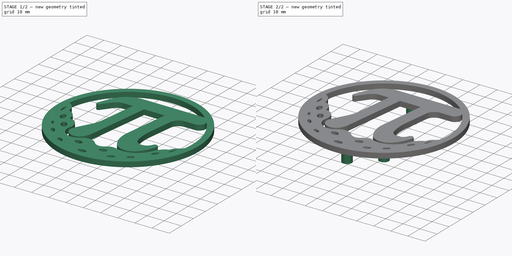
[diagram: build sequence overview — one tinted view per stage of 2, left to right]
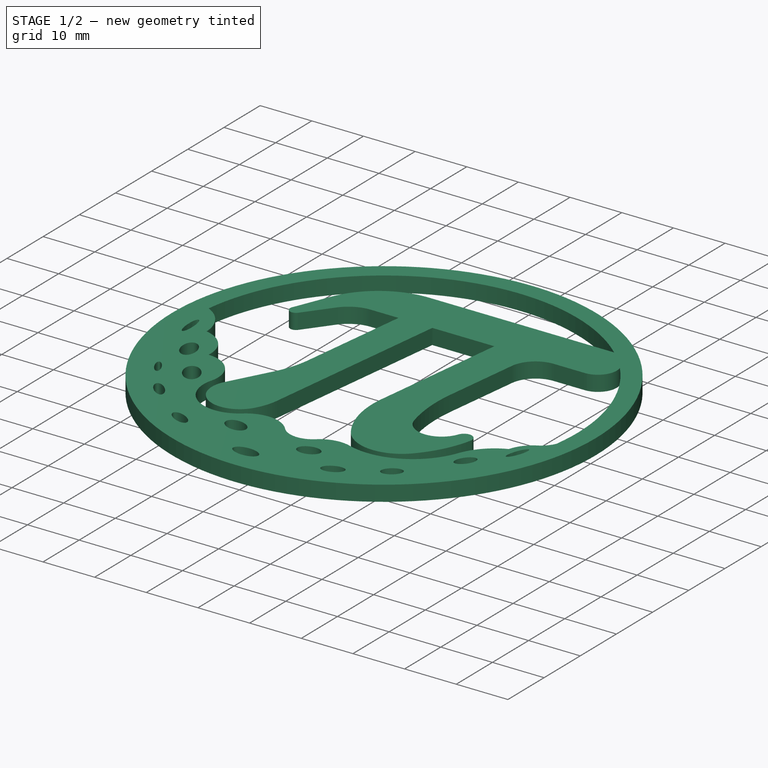
[diagram: stage 1 of 2 — iso view after this stage's code; geometry added in this stage tinted green]
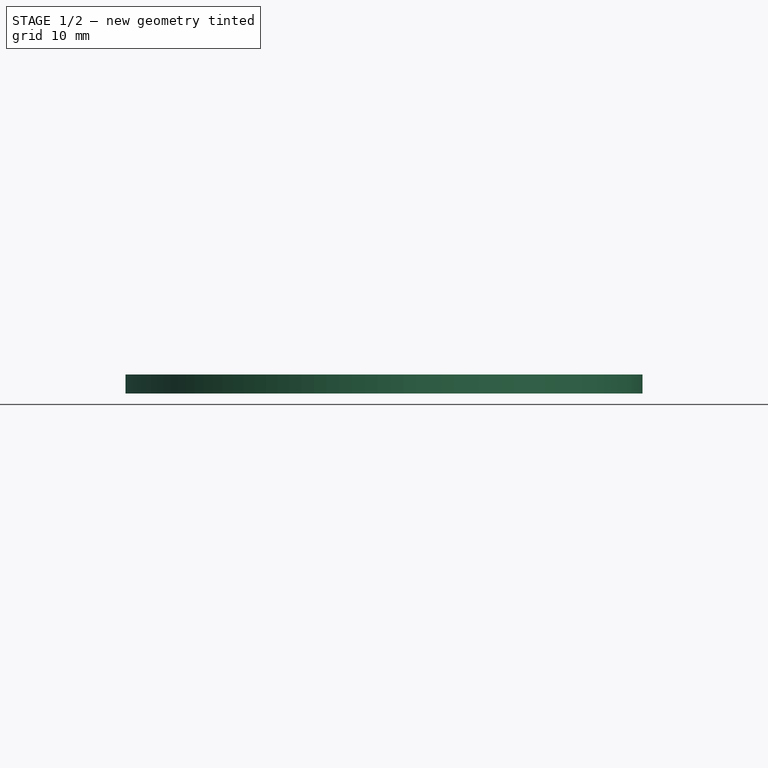
[diagram: stage 1 of 2 — front view after this stage's code; geometry added in this stage tinted green]
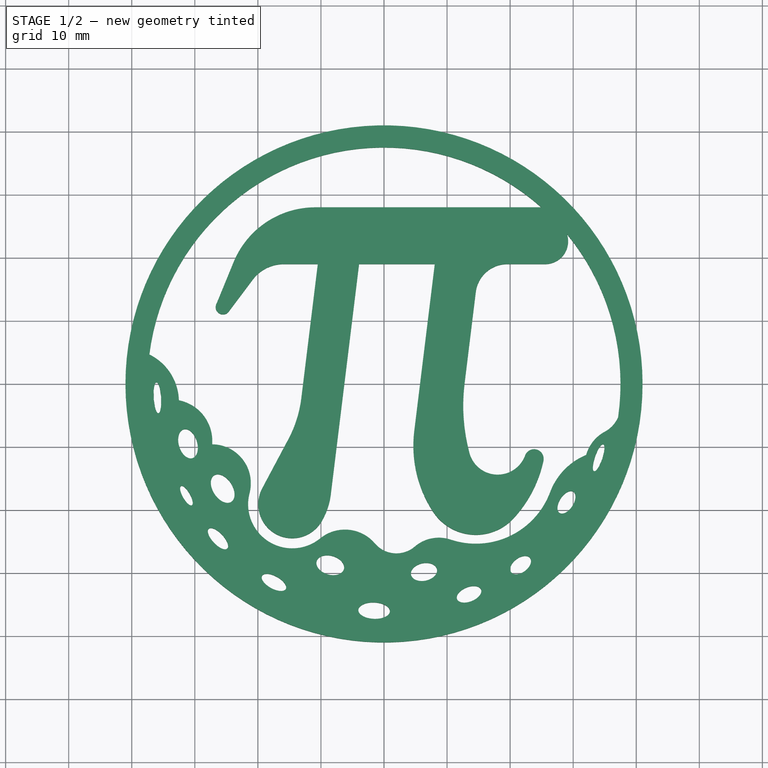
[diagram: stage 1 of 2 — top view after this stage's code; geometry added in this stage tinted green]
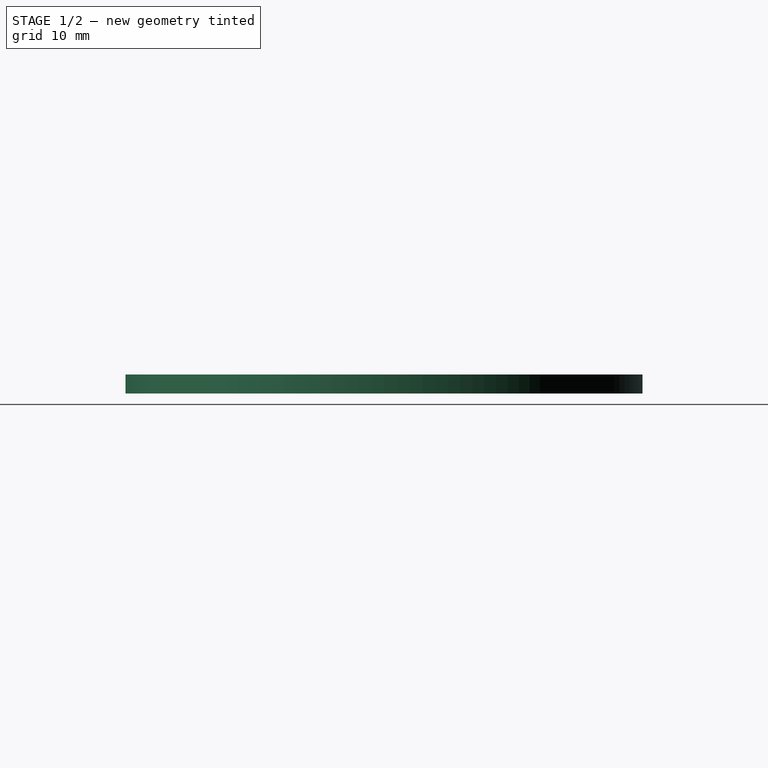
[diagram: stage 1 of 2 — right view after this stage's code; geometry added in this stage tinted green]
FCSTD DOCUMENT  (FreeCAD 1.0R39319 (Git))
Label: Stack_Module_Cover_LogoBall
License: All rights reserved
LicenseURL: https://en.wikipedia.org/wiki/All_rights_reserved
objects: Sketcher::SketchObject×2, PartDesign::Pad×2, PartDesign::ShapeBinder×1, PartDesign::Body×1, Part::Scale×1, PartDesign::CoordinateSystem×1, App::Part×1
note: 14 computed .brp shape members not serialized (recipe doc carries the construction recipe); baked Part::Feature solids carry a one-line shape summary decoded from their .brp

FEATURE [Sketcher::SketchObject] Sketch
  ArcFitTolerance = 1e-06
  AttachmentSupport = -> [XY_Plane001]
  FullyConstrained = false
  MakeInternals = false
  MapMode = 5
  sketch-geometry (161):
    g0: Circle CenterX=0 CenterY=0 CenterZ=0 NormalX=0 NormalY=0 NormalZ=1 AngleXU=0 Radius=41
    g1: Circle [constr] CenterX=0 CenterY=0 CenterZ=0 NormalX=0 NormalY=0 NormalZ=1 AngleXU=0 Radius=37.5
    g2: LineSegment StartX=24.9449 StartY=28 StartZ=0 EndX=-10.8953 EndY=28 EndZ=0
    g3: LineSegment StartX=-23.8473 StartY=19.3147 StartZ=0 EndX=-26.5337 EndY=12.7677 EndZ=0
    g4: ArcOfCircle CenterX=-10.8953 CenterY=14 CenterZ=0 NormalX=0 NormalY=0 NormalZ=1 AngleXU=0 Radius=14 StartAngle=1.5708 EndAngle=2.75221
    g5: GeomPoint [constr] X=-20.2834 Y=28 Z=0
    g6: ArcOfCircle CenterX=-25.5341 CenterY=12.1792 CenterZ=0 NormalX=0 NormalY=0 NormalZ=1 AngleXU=0 Radius=1.16 StartAngle=2.60947 EndAngle=5.75448
    g7: LineSegment StartX=-24.5325 StartY=11.594 StartZ=0 EndX=-20.8221 EndY=16.5323 EndZ=0
    g8: LineSegment StartX=-15.8813 StartY=19 StartZ=0 EndX=-10.5 EndY=19 EndZ=0
    g9: ArcOfCircle CenterX=-15.8813 CenterY=12.82 CenterZ=0 NormalX=0 NormalY=0 NormalZ=1 AngleXU=0 Radius=6.18 StartAngle=1.5708 EndAngle=2.49722
    g10: GeomPoint [constr] X=-18.9679 Y=19 Z=0
    g11: LineSegment StartX=-10.5 StartY=19 StartZ=0 EndX=-13.1153 EndY=-2.30004 EndZ=0
    g12: LineSegment StartX=-19.3069 StartY=-16.5524 StartZ=0 EndX=-15.1543 EndY=-8.75786 EndZ=0
    g13: ArcOfCircle CenterX=-31.5171 CenterY=-0.0405907 CenterZ=0 NormalX=0 NormalY=0 NormalZ=1 AngleXU=0 Radius=18.54 StartAngle=5.79368 EndAngle=6.16101
    g14: GeomPoint [constr] X=-13.535 Y=-5.71833 Z=0
    g15: ArcOfCircle CenterX=-14.5498 CenterY=-19.0867 CenterZ=0 NormalX=0 NormalY=0 NormalZ=1 AngleXU=0 Radius=5.39 StartAngle=2.65209 EndAngle=5.73645
    g16: ArcOfCircle CenterX=-19.2458 CenterY=-16.2287 CenterZ=0 NormalX=0 NormalY=0 NormalZ=1 AngleXU=0 Radius=10.8873 StartAngle=5.73645 EndAngle=6.16101
    g17: LineSegment StartX=-8.43962 StartY=-17.5555 StartZ=0 EndX=-3.95119 EndY=19 EndZ=0
    g18: LineSegment StartX=-3.95119 StartY=19 StartZ=0 EndX=8.04881 EndY=19 EndZ=0
    g19: Ellipse CenterX=34.0387 CenterY=-11.7205 CenterZ=0 NormalX=0 NormalY=0 NormalZ=1 MajorRadius=2.25 MinorRadius=0.6 AngleXU=1.23918
    g20: LineSegment [constr] StartX=34.7712 StartY=-9.59304 StartZ=0 EndX=33.3061 EndY=-13.8479 EndZ=0
    g21: LineSegment [constr] StartX=33.4714 StartY=-11.5251 StartZ=0 EndX=34.606 EndY=-11.9158 EndZ=0
    g22: GeomPoint [constr] X=34.7447 Y=-9.67008 Z=0
    g23: GeomPoint [constr] X=33.3327 Y=-13.7708 Z=0
    g24: Ellipse CenterX=6.34131 CenterY=-29.8335 CenterZ=0 NormalX=0 NormalY=0 NormalZ=1 MajorRadius=2.1 MinorRadius=1.4 AngleXU=0.20944
    g25: LineSegment [constr] StartX=8.39542 StartY=-29.3969 StartZ=0 EndX=4.2872 EndY=-30.2701 EndZ=0
    g26: LineSegment [constr] StartX=6.05023 StartY=-28.4641 StartZ=0 EndX=6.63239 EndY=-31.2029 EndZ=0
    g27: GeomPoint [constr] X=7.87235 Y=-29.5081 Z=0
    g28: GeomPoint [constr] X=4.81027 Y=-30.1589 Z=0
    g29: Ellipse CenterX=13.4858 CenterY=-33.3786 CenterZ=0 NormalX=0 NormalY=0 NormalZ=1 MajorRadius=2.05 MinorRadius=1.15 AngleXU=0.383973
    g30: LineSegment [constr] StartX=15.3866 StartY=-32.6107 StartZ=0 EndX=11.5851 EndY=-34.1466 EndZ=0
    g31: LineSegment [constr] StartX=13.055 StartY=-32.3124 StartZ=0 EndX=13.9166 EndY=-34.4449 EndZ=0
    g32: GeomPoint [constr] X=15.0593 Y=-32.7429 Z=0
    g33: GeomPoint [constr] X=11.9124 Y=-34.0143 Z=0
    g34: Ellipse CenterX=21.6653 CenterY=-28.7509 CenterZ=0 NormalX=0 NormalY=0 NormalZ=1 MajorRadius=1.875 MinorRadius=1.15 AngleXU=0.645772
    g35: LineSegment [constr] StartX=23.1628 StartY=-27.6225 StartZ=0 EndX=20.1679 EndY=-29.8793 EndZ=0
    g36: LineSegment [constr] StartX=20.9732 StartY=-27.8325 StartZ=0 EndX=22.3574 EndY=-29.6693 EndZ=0
    g37: GeomPoint [constr] X=22.8481 Y=-27.8596 Z=0
    g38: GeomPoint [constr] X=20.4826 Y=-29.6421 Z=0
    g39: Ellipse CenterX=28.9341 CenterY=-18.79 CenterZ=0 NormalX=0 NormalY=0 NormalZ=1 MajorRadius=2 MinorRadius=1.1 AngleXU=0.994838
    g40: LineSegment [constr] StartX=30.0234 StartY=-17.1127 StartZ=0 EndX=27.8449 EndY=-20.4674 EndZ=0
    g41: LineSegment [constr] StartX=28.0116 StartY=-18.1909 StartZ=0 EndX=29.8567 EndY=-19.3891 EndZ=0
    g42: GeomPoint [constr] X=29.8439 Y=-17.3892 Z=0
    g43: GeomPoint [constr] X=28.0244 Y=-20.1909 Z=0
    g44: Ellipse CenterX=-1.5703 CenterY=-35.9657 CenterZ=0 NormalX=0 NormalY=0 NormalZ=1 MajorRadius=2.50238 MinorRadius=1.30124 AngleXU=-0.0436333
    g45: LineSegment [constr] StartX=0.929699 StartY=-36.0749 StartZ=0 EndX=-4.0703 EndY=-35.8566 EndZ=0
    g46: LineSegment [constr] StartX=-1.51354 StartY=-34.6657 StartZ=0 EndX=-1.62706 EndY=-37.2657 EndZ=0
    g47: GeomPoint [constr] X=0.565114 Y=-36.059 Z=0
    g48: GeomPoint [constr] X=-3.70572 Y=-35.8725 Z=0
    g49: Ellipse CenterX=-8.52046 CenterY=-28.7646 CenterZ=0 NormalX=0 NormalY=0 NormalZ=1 MajorRadius=2.25 MinorRadius=1.5 AngleXU=-0.287979
    g50: LineSegment [constr] StartX=-6.36312 StartY=-29.4036 StartZ=0 EndX=-10.6778 EndY=-28.1256 EndZ=0
    g51: LineSegment [constr] StartX=-8.09444 StartY=-27.3264 StartZ=0 EndX=-8.94648 EndY=-30.2028 EndZ=0
    g52: GeomPoint [constr] X=-6.91247 Y=-29.2409 Z=0
    g53: GeomPoint [constr] X=-10.1284 Y=-28.2883 Z=0
    g54: Ellipse CenterX=-17.4531 CenterY=-31.4863 CenterZ=0 NormalX=0 NormalY=0 NormalZ=1 MajorRadius=2.15 MinorRadius=1 AngleXU=-0.506145
    g55: LineSegment [constr] StartX=-15.5727 StartY=-32.5287 StartZ=0 EndX=-19.3336 EndY=-30.444 EndZ=0
    g56: LineSegment [constr] StartX=-16.9683 StartY=-30.6117 StartZ=0 EndX=-17.938 EndY=-32.3609 EndZ=0
    g57: GeomPoint [constr] X=-15.7885 Y=-32.409 Z=0
    g58: GeomPoint [constr] X=-19.1178 Y=-30.5636 Z=0
    g59: Ellipse CenterX=-26.3287 CenterY=-24.552 CenterZ=0 NormalX=0 NormalY=0 NormalZ=1 MajorRadius=2.15 MinorRadius=0.9 AngleXU=-0.820304
    g60: LineSegment [constr] StartX=-24.8624 StartY=-26.1244 StartZ=0 EndX=-27.795 EndY=-22.9795 EndZ=0
    g61: LineSegment [constr] StartX=-25.6705 StartY=-23.9382 StartZ=0 EndX=-26.9869 EndY=-25.1658 EndZ=0
    g62: GeomPoint [constr] X=-24.9971 Y=-25.98 Z=0
    g63: GeomPoint [constr] X=-27.6604 Y=-23.1239 Z=0
    g64: Ellipse CenterX=-35.9329 CenterY=-2.19776 CenterZ=0 NormalX=0 NormalY=0 NormalZ=1 MajorRadius=2.45458 MinorRadius=0.601121 AngleXU=-1.50971
    g65: LineSegment [constr] StartX=-35.783 StartY=-4.64776 StartZ=0 EndX=-36.0827 EndY=0.252235 EndZ=0
    g66: LineSegment [constr] StartX=-35.3329 StartY=-2.16107 StartZ=0 EndX=-36.5329 EndY=-2.23446 EndZ=0
    g67: GeomPoint [constr] X=-35.7876 Y=-4.57316 Z=0
    g68: GeomPoint [constr] X=-36.0781 Y=0.17763 Z=0
    g69: Ellipse CenterX=-25.5794 CenterY=-16.6115 CenterZ=0 NormalX=0 NormalY=0 NormalZ=1 MajorRadius=2.5 MinorRadius=1.55 AngleXU=-0.994837
    g70: LineSegment [constr] StartX=-24.2178 StartY=-18.7082 StartZ=0 EndX=-26.941 EndY=-14.5148 EndZ=0
    g71: LineSegment [constr] StartX=-24.2795 StartY=-15.7673 StartZ=0 EndX=-26.8794 EndY=-17.4557 EndZ=0
    g72: GeomPoint [constr] X=-24.5111 Y=-18.2566 Z=0
    g73: GeomPoint [constr] X=-26.6478 Y=-14.9664 Z=0
    g74: Ellipse CenterX=-31.3328 CenterY=-17.7272 CenterZ=0 NormalX=0 NormalY=0 NormalZ=1 MajorRadius=1.75 MinorRadius=0.6 AngleXU=-1.05592
    g75: LineSegment [constr] StartX=-30.4711 StartY=-19.2504 StartZ=0 EndX=-32.1945 EndY=-16.2041 EndZ=0
    g76: LineSegment [constr] StartX=-30.8106 StartY=-17.4318 StartZ=0 EndX=-31.855 EndY=-18.0227 EndZ=0
    g77: GeomPoint [constr] X=-30.5233 Y=-19.158 Z=0
    g78: GeomPoint [constr] X=-32.1423 Y=-16.2964 Z=0
    g79: Ellipse CenterX=-31.0799 CenterY=-9.50208 CenterZ=0 NormalX=0 NormalY=0 NormalZ=1 MajorRadius=2.385 MinorRadius=1.46 AngleXU=-1.27409
    g80: LineSegment [constr] StartX=-30.3826 StartY=-11.7829 StartZ=0 EndX=-31.7772 EndY=-7.22129 EndZ=0
    g81: LineSegment [constr] StartX=-29.6837 StartY=-9.07522 StartZ=0 EndX=-32.4761 EndY=-9.92894 EndZ=0
    g82: GeomPoint [constr] X=-30.5285 Y=-11.3056 Z=0
    g83: GeomPoint [constr] X=-31.6313 Y=-7.69858 Z=0
    g84: ArcOfCircle CenterX=-3.28958 CenterY=-16.1688 CenterZ=0 NormalX=0 NormalY=0 NormalZ=1 AngleXU=0 Radius=2.6 StartAngle=0.226445 EndAngle=2.51372
    g85: ArcOfCircle CenterX=-3.68832 CenterY=-18.1286 CenterZ=0 NormalX=0 NormalY=0 NormalZ=1 AngleXU=0 Radius=3.6 StartAngle=0.733279 EndAngle=2.00689
    g86: LineSegment [constr] StartX=-3.68832 StartY=-18.1286 StartZ=0 EndX=-3.28958 EndY=-16.1688 EndZ=0
    g87: ArcOfCircle CenterX=-29.978 CenterY=1.15 CenterZ=0 NormalX=0 NormalY=0 NormalZ=1 AngleXU=0 Radius=2.6 StartAngle=5.54097 EndAngle=7.82825
    g88: ArcOfCircle CenterX=-31.819 CenterY=0.368537 CenterZ=0 NormalX=0 NormalY=0 NormalZ=1 AngleXU=0 Radius=3.6 StartAngle=6.04781 EndAngle=7.32142
    g89: ArcOfCircle CenterX=35 CenterY=-0.610917 CenterZ=0 NormalX=0 NormalY=0 NormalZ=1 AngleXU=0 Radius=2.6 StartAngle=1.9805 EndAngle=4.26778
    g90: ArcOfCircle CenterX=36.9997 CenterY=-0.645821 CenterZ=0 NormalX=0 NormalY=0 NormalZ=1 AngleXU=0 Radius=3.6 StartAngle=2.48734 EndAngle=3.76094
    g91: LineSegment [constr] StartX=36.9997 StartY=-0.645821 StartZ=0 EndX=35 EndY=-0.610917 EndZ=0
    g92: ArcOfCircle CenterX=-23.1216 CenterY=-4.2 CenterZ=0 NormalX=0 NormalY=0 NormalZ=1 AngleXU=0 Radius=2.6 StartAngle=5.92494 EndAngle=8.21222
    g93: ArcOfCircle CenterX=-24.5358 CenterY=-5.61421 CenterZ=0 NormalX=0 NormalY=0 NormalZ=1 AngleXU=0 Radius=3.6 StartAngle=0.148594 EndAngle=1.4222
    g94: ArcOfCircle CenterX=-34.0259 CenterY=8.2 CenterZ=0 NormalX=0 NormalY=0 NormalZ=1 AngleXU=0 Radius=2.6 StartAngle=5.13955 EndAngle=7.42682
    g95: ArcOfCircle CenterX=-36.0259 CenterY=8.2 CenterZ=0 NormalX=0 NormalY=0 NormalZ=1 AngleXU=0 Radius=3.6 StartAngle=5.64638 EndAngle=6.91999
    g96: ArcOfCircle CenterX=30.0791 CenterY=-7.5 CenterZ=0 NormalX=0 NormalY=0 NormalZ=1 AngleXU=0 Radius=2.6 StartAngle=1.41327 EndAngle=3.70055
    g97: ArcOfCircle CenterX=31.7468 CenterY=-8.60387 CenterZ=0 NormalX=0 NormalY=0 NormalZ=1 AngleXU=0 Radius=3.6 StartAngle=1.9201 EndAngle=3.19371
    g98: ArcOfCircle CenterX=2.1086 CenterY=-21.8987 CenterZ=0 NormalX=0 NormalY=0 NormalZ=1 AngleXU=0 Radius=2.6 StartAngle=0.523151 EndAngle=2.81043
    g99: ArcOfCircle CenterX=2.30029 CenterY=-23.8895 CenterZ=0 NormalX=0 NormalY=0 NormalZ=1 AngleXU=0 Radius=3.6 StartAngle=1.02998 EndAngle=2.30359
    g100: LineSegment [constr] StartX=2.30029 StartY=-23.8895 StartZ=0 EndX=2.1086 EndY=-21.8987 EndZ=0
    g101: LineSegment StartX=8.04881 StartY=19 StartZ=0 EndX=4.79613 EndY=-7.49106 EndZ=0
    g102: ArcOfCircle CenterX=23.724 CenterY=-9.8151 CenterZ=0 NormalX=0 NormalY=0 NormalZ=1 AngleXU=0 Radius=19.07 StartAngle=3.01942 EndAngle=3.72139
    g103: ArcOfCircle CenterX=14.5718 CenterY=-15.8086 CenterZ=0 NormalX=0 NormalY=0 NormalZ=1 AngleXU=0 Radius=8.13 StartAngle=3.72139 EndAngle=5.53863
    g104: ArcOfCircle CenterX=6.15897 CenterY=-8.05635 CenterZ=0 NormalX=0 NormalY=0 NormalZ=1 AngleXU=0 Radius=19.57 StartAngle=5.53863 EndAngle=6.06966
    g105: ArcOfCircle CenterX=23.799 CenterY=-11.8813 CenterZ=0 NormalX=0 NormalY=0 NormalZ=1 AngleXU=0 Radius=1.52 StartAngle=6.06966 EndAngle=9.07368
    g106: ArcOfCircle CenterX=18.0242 CenterY=-9.76613 CenterZ=0 NormalX=0 NormalY=0 NormalZ=1 AngleXU=0 Radius=4.63 StartAngle=3.4029 EndAngle=5.93208
    g107: ArcOfCircle CenterX=41.6732 CenterY=-3.44186 CenterZ=0 NormalX=0 NormalY=0 NormalZ=1 AngleXU=0 Radius=29.11 StartAngle=3.02879 EndAngle=3.4029
    g108: LineSegment StartX=12.7482 StartY=-0.165091 StartZ=0 EndX=14.558 EndY=14.5742 EndZ=0
    g109: LineSegment StartX=19.5604 StartY=19 StartZ=0 EndX=25.5604 EndY=19 EndZ=0
    g110: ArcOfCircle CenterX=19.5604 CenterY=13.96 CenterZ=0 NormalX=0 NormalY=0 NormalZ=1 AngleXU=0 Radius=5.04 StartAngle=1.5708 EndAngle=3.01942
    g111: GeomPoint [constr] X=15.1014 Y=19 Z=0
    g112: ArcOfCircle CenterX=25.5604 CenterY=22.64 CenterZ=0 NormalX=0 NormalY=0 NormalZ=1 AngleXU=0 Radius=3.64 StartAngle=4.71239 EndAngle=6.58928
    g113: LineSegment [constr] StartX=0 StartY=-71.5751 StartZ=0 EndX=0 EndY=-50.0337 EndZ=0
    g114: ArcOfCircle CenterX=-40.9001 CenterY=-2.86001 CenterZ=0 NormalX=0 NormalY=0 NormalZ=1 AngleXU=0 Radius=8.38 StartAngle=0.030432 EndAngle=1.11467
    g115: ArcOfCircle CenterX=-33.8074 CenterY=-9.05865 CenterZ=0 NormalX=0 NormalY=0 NormalZ=1 AngleXU=0 Radius=6.58 StartAngle=6.20233 EndAngle=7.65768
    g116: ArcOfCircle CenterX=-27.2798 CenterY=-15.75 CenterZ=0 NormalX=0 NormalY=0 NormalZ=1 AngleXU=0 Radius=6.16 StartAngle=6.02684 EndAngle=7.84897
    g117: ArcOfCircle CenterX=-14.5498 CenterY=-19.0867 CenterZ=0 NormalX=0 NormalY=0 NormalZ=1 AngleXU=0 Radius=7 StartAngle=2.88525 EndAngle=5.39568
    g118: ArcOfCircle CenterX=-6.19075 CenterY=-29.3543 CenterZ=0 NormalX=0 NormalY=0 NormalZ=1 AngleXU=0 Radius=6.24 StartAngle=0.704991 EndAngle=2.25409
    g119: ArcOfCircle CenterX=1.96617 CenterY=-22.4139 CenterZ=0 NormalX=0 NormalY=0 NormalZ=1 AngleXU=0 Radius=4.47 StartAngle=3.84658 EndAngle=5.42057
    g120: ArcOfCircle CenterX=8.6984 CenterY=-30.2752 CenterZ=0 NormalX=0 NormalY=0 NormalZ=1 AngleXU=0 Radius=5.88 StartAngle=1.24712 EndAngle=2.27898
    g121: ArcOfCircle CenterX=14.5665 CenterY=-12.7833 CenterZ=0 NormalX=0 NormalY=0 NormalZ=1 AngleXU=0 Radius=12.57 StartAngle=4.38871 EndAngle=5.9264
    g122: ArcOfCircle CenterX=35.94 CenterY=-20.75 CenterZ=0 NormalX=0 NormalY=0 NormalZ=1 AngleXU=0 Radius=10.24 StartAngle=1.95984 EndAngle=2.78481
    g123: ArcOfCircle CenterX=37.8638 CenterY=-12.897 CenterZ=0 NormalX=0 NormalY=0 NormalZ=1 AngleXU=0 Radius=6.03 StartAngle=2.06124 EndAngle=2.86929
    g124: ArcOfCircle CenterX=32.8192 CenterY=-3.44945 CenterZ=0 NormalX=0 NormalY=0 NormalZ=1 AngleXU=0 Radius=4.68 StartAngle=5.20283 EndAngle=5.88136
    g125: ArcOfCircle CenterX=0 CenterY=1.33e-14 CenterZ=0 NormalX=0 NormalY=0 NormalZ=1 AngleXU=0 Radius=37.5 StartAngle=6.14192 EndAngle=6.96859
    g126: ArcOfCircle CenterX=-2.84e-14 CenterY=7.46e-14 CenterZ=0 NormalX=0 NormalY=0 NormalZ=1 AngleXU=0 Radius=37.5 StartAngle=0.843037 EndAngle=3.01692
    g127: LineSegment [constr] StartX=-40.9001 StartY=-2.86001 StartZ=0 EndX=0 EndY=1.33e-14 EndZ=0
    g128: LineSegment [constr] StartX=-27.2798 StartY=-15.75 StartZ=0 EndX=0 EndY=-1.8e-15 EndZ=0
    g129: LineSegment [constr] StartX=-14.5498 StartY=-19.0867 StartZ=0 EndX=0 EndY=0 EndZ=0
    g130: LineSegment [constr] StartX=-6.19075 StartY=-29.3543 StartZ=0 EndX=0 EndY=0 EndZ=0
    g131: LineSegment [constr] StartX=8.6984 StartY=-30.2752 StartZ=0 EndX=0 EndY=0 EndZ=0
    g132: LineSegment [constr] StartX=1.96617 StartY=-22.4139 StartZ=0 EndX=-2e-16 EndY=0 EndZ=0
    g133: LineSegment [constr] StartX=14.5718 StartY=-15.8086 StartZ=0 EndX=1.8e-15 EndY=0 EndZ=0
    g134: LineSegment [constr] StartX=35.94 StartY=-20.75 StartZ=0 EndX=0 EndY=0 EndZ=0
    g135: LineSegment [constr] StartX=37.8638 StartY=-12.897 StartZ=0 EndX=0 EndY=0 EndZ=0
    g136: LineSegment [constr] StartX=32.8192 StartY=-3.44945 StartZ=0 EndX=0 EndY=0 EndZ=0
    g137: LineSegment [constr] StartX=-33.8074 StartY=-9.05865 StartZ=0 EndX=0 EndY=0 EndZ=0
    g138: LineSegment [constr] StartX=23.799 StartY=-11.8813 StartZ=0 EndX=-2.84e-14 EndY=7.46e-14 EndZ=0
    g139: LineSegment [constr] StartX=18.0242 StartY=-9.76613 StartZ=0 EndX=0 EndY=0 EndZ=0
    g140: LineSegment [constr] StartX=-15.8813 StartY=12.82 StartZ=0 EndX=0 EndY=0 EndZ=0
    g141: LineSegment [constr] StartX=-25.5341 StartY=12.1792 StartZ=0 EndX=0 EndY=0 EndZ=0
    g142: LineSegment [constr] StartX=-10.8953 StartY=14 StartZ=0 EndX=0 EndY=0 EndZ=0
    g143: ArcOfCircle CenterX=30.4634 CenterY=-5.08034 CenterZ=0 NormalX=0 NormalY=0 NormalZ=1 AngleXU=0 Radius=0.15 StartAngle=5.0617 EndAngle=7.69645
    g144: ArcOfCircle CenterX=28.0019 CenterY=-8.79923 CenterZ=0 NormalX=0 NormalY=0 NormalZ=1 AngleXU=0 Radius=0.15 StartAngle=3.70055 EndAngle=6.3353
    g145: ArcOfCircle CenterX=33.9462 CenterY=-2.82272 CenterZ=0 NormalX=0 NormalY=0 NormalZ=1 AngleXU=0 Radius=0.15 StartAngle=4.26778 EndAngle=6.90254
    g146: ArcOfCircle CenterX=34.0241 CenterY=1.63632 CenterZ=0 NormalX=0 NormalY=0 NormalZ=1 AngleXU=0 Radius=0.15 StartAngle=5.62893 EndAngle=8.26369
    g147: ArcOfCircle CenterX=-0.20828 CenterY=-21.1021 CenterZ=0 NormalX=0 NormalY=0 NormalZ=1 AngleXU=0 Radius=0.15 StartAngle=2.81043 EndAngle=5.44519
    g148: ArcOfCircle CenterX=4.23091 CenterY=-20.6747 CenterZ=0 NormalX=0 NormalY=0 NormalZ=1 AngleXU=0 Radius=0.15 StartAngle=4.17158 EndAngle=6.80634
    g149: ArcOfCircle CenterX=-5.27231 CenterY=-14.7296 CenterZ=0 NormalX=0 NormalY=0 NormalZ=1 AngleXU=0 Radius=0.15 StartAngle=2.51372 EndAngle=5.14848
    g150: ArcOfCircle CenterX=-0.902125 CenterY=-15.6187 CenterZ=0 NormalX=0 NormalY=0 NormalZ=1 AngleXU=0 Radius=0.15 StartAngle=3.87487 EndAngle=6.50963
    g151: ArcOfCircle CenterX=-20.8272 CenterY=-5.05904 CenterZ=0 NormalX=0 NormalY=0 NormalZ=1 AngleXU=0 Radius=0.15 StartAngle=3.29019 EndAngle=5.92494
    g152: ArcOfCircle CenterX=-23.9807 CenterY=-1.90554 CenterZ=0 NormalX=0 NormalY=0 NormalZ=1 AngleXU=0 Radius=0.15 StartAngle=1.92904 EndAngle=4.5638
    g153: ArcOfCircle CenterX=-29.9149 CenterY=3.59919 CenterZ=0 NormalX=0 NormalY=0 NormalZ=1 AngleXU=0 Radius=0.15 StartAngle=1.54506 EndAngle=4.17982
    g154: ArcOfCircle CenterX=-28.1724 CenterY=-0.506004 CenterZ=0 NormalX=0 NormalY=0 NormalZ=1 AngleXU=0 Radius=0.15 StartAngle=2.90621 EndAngle=5.54097
    g155: ArcOfCircle CenterX=-33.0109 CenterY=5.97014 CenterZ=0 NormalX=0 NormalY=0 NormalZ=1 AngleXU=0 Radius=0.15 StartAngle=2.50479 EndAngle=5.13955
    g156: ArcOfCircle CenterX=-33.0109 CenterY=10.4299 CenterZ=0 NormalX=0 NormalY=0 NormalZ=1 AngleXU=0 Radius=0.15 StartAngle=1.14364 EndAngle=3.7784
    g157: LineSegment [constr] StartX=-36.0259 StartY=8.2 StartZ=0 EndX=-34.0259 EndY=8.2 EndZ=0
    g158: LineSegment [constr] StartX=-31.819 StartY=0.368537 StartZ=0 EndX=-29.978 EndY=1.15 EndZ=0
    g159: LineSegment [constr] StartX=-24.5358 StartY=-5.61421 StartZ=0 EndX=-23.1216 EndY=-4.2 EndZ=0
    g160: LineSegment [constr] StartX=30.0791 StartY=-7.5 StartZ=0 EndX=31.7468 EndY=-8.60387 EndZ=0
  constraints (338):
    c: Diameter(g0) = 82
    c: Coincident(g1,g0)
    c: Diameter(g1) = 75
    c: PointOnObject(g2,g1)
    c: Horizontal(g2)
    c: PointOnObject(g5,g3)
    c: PointOnObject(g5,g2)
    c: Tangent(g3,g4) = -1.5708
    c: Tangent(g2,g4) = -1.5708
    c: Distance(g0,g2) = 28
    c: Radius(g4) = 14
    c: Coincident(g6,g3)
    c: Coincident(g7,g6)
    c: Horizontal(g8)
    c: PointOnObject(g10,g7)
    c: PointOnObject(g10,g8)
    c: Tangent(g7,g9) = 1.5708
    c: Tangent(g8,g9) = 1.5708
    c: Distance(g2,g8) = 9
    c: Coincident(g11,g8)
    c: PointOnObject(g14,g12)
    c: PointOnObject(g14,g11)
    c: Tangent(g12,g13) = -1.5708
    c: Tangent(g11,g13) = 1.5708
    c: DistanceX(g8,g0) = 10.5
    c: Tangent(g16,g15) = -1.5708
    c: Tangent(g15,g12) = 1.5708
    c: Coincident(g18,g17)
    c: Horizontal(g18)
    c: Tangent(g17,g16) = -1.5708
    c: Parallel(g11,g17)
    c: Angle(g17,g18) = 1.69297
    c: PointOnObject(g8,g18)
    c: Distance(g17,g11) = 6.5
    c: InternalAlignment(g20-g23 -> g19) x4
    c: InternalAlignment(g25-g28 -> g24) x4
    c: InternalAlignment(g30-g33 -> g29) x4
    c: InternalAlignment(g35-g38 -> g34) x4
    c: InternalAlignment(g40-g43 -> g39) x4
    c: InternalAlignment(g45-g48 -> g44) x4
    c: InternalAlignment(g50-g53 -> g49) x4
    c: InternalAlignment(g55-g58 -> g54) x4
    c: InternalAlignment(g60-g63 -> g59) x4
    c: InternalAlignment(g65-g68 -> g64) x4
    c: InternalAlignment(g70-g73 -> g69) x4
    c: InternalAlignment(g75-g78 -> g74) x4
    c: InternalAlignment(g80-g83 -> g79) x4
    c: Coincident(g86,g85)
    c: Coincident(g86,g84)
    c: Radius(g85) = 3.6
    c: Radius(g84) = 2.6
    c: Distance(g86,g86) = 2
    c: Radius(g88) = 3.6
    c: Radius(g87) = 2.6
    c: Distance(g88,g87) = 2
    c: Coincident(g91,g90)
    c: Coincident(g91,g89)
    c: Radius(g90) = 3.6
    c: Radius(g89) = 2.6
    c: Distance(g91,g91) = 2
    c: Radius(g93) = 3.6
    c: Radius(g92) = 2.6
    c: Distance(g93,g92) = 2
    c: Radius(g95) = 3.6
    c: Radius(g94) = 2.6
    c: Distance(g95,g94) = 2
    c: Radius(g97) = 3.6
    c: Radius(g96) = 2.6
    c: Distance(g97,g96) = 2
    c: Coincident(g100,g99)
    c: Coincident(g100,g98)
    c: Radius(g99) = 3.6
    c: Radius(g98) = 2.6
    c: Distance(g100,g100) = 2
    c: Coincident(g101,g18)
    c: Tangent(g102,g101) = -1.5708
    c: Parallel(g17,g101)
    c: DistanceX(g18,g18) = 12
    c: Tangent(g103,g102) = -1.5708
    c: Tangent(g104,g103) = -1.5708
    c: Tangent(g105,g104) = -1.5708
    c: Tangent(g106,g105) = 1.5708
    c: Tangent(g107,g106) = -1.5708
    c: Coincident(g108,g107)
    c: Parallel(g101,g108)
    c: Horizontal(g109)
    c: PointOnObject(g109,g18)
    c: PointOnObject(g111,g108)
    c: PointOnObject(g111,g109)
    c: Tangent(g108,g110) = 1.5708
    c: Tangent(g109,g110) = 1.5708
    c: Tangent(g112,g109) = -1.5708
    c: PointOnObject(g112,g1)
    c: Vertical(g113)
    c: PointOnObject(g0,g113)
    c: PointOnObject(g114,g1)
    c: Coincident(g115,g114)
    c: Coincident(g116,g115)
    c: Coincident(g123,g122)
    c: PointOnObject(g124,g1)
    c: Tangent(g119,g118) = 1.5708
    c: Tangent(g120,g119) = 1.5708
    c: Tangent(g121,g120) = 1.5708
    c: Tangent(g122,g121) = 1.5708
    c: Tangent(g124,g123) = 1.5708
    c: Tangent(g118,g117) = 1.5708
    c: Tangent(g117,g116) = 1.5708
    c: Coincident(g125,g112)
    c: Coincident(g125,g124)
    c: Coincident(g126,g2)
    c: Coincident(g126,g114)
    c: Radius(g125) = 37.5
    c: Angle(g4) = 1.18141
    c: Radius(g6) = 1.16
    c: Radius(g9) = 6.18
    c: Radius(g13) = 18.54
    c: Radius(g15) = 5.39
    c: Radius(g102) = 19.07
    c: Radius(g103) = 8.13
    c: Radius(g104) = 19.57
    c: Radius(g105) = 1.52
    c: Radius(g106) = 4.63
    c: Radius(g107) = 29.11
    c: Radius(g110) = 5.04
    c: Radius(g112) = 3.64
    c: DistanceX(g109,g109) = 6
    c: Distance(g108,g108) = 14.85
    c: Distance(g101,g101) = 26.69
    c: Distance(g17,g17) = 36.83
    c: Distance(g11,g11) = 21.46
    c: Distance(g108,g101) = 7
    c: Radius(g124) = 4.68
    c: Radius(g123) = 6.03
    c: Radius(g122) = 10.24
    c: Radius(g121) = 12.57
    c: Radius(g120) = 5.88
    c: Radius(g119) = 4.47
    c: Radius(g118) = 6.24
    c: Radius(g117) = 7
    c: Radius(g116) = 6.16
    c: Radius(g115) = 6.58
    c: Radius(g114) = 8.38
    c: Distance(g80,g80) = 4.77
    c: Distance(g81,g81) = 2.92
    c: PointOnObject(g125,g86)
    c: PointOnObject(g125,g100)
    c: PointOnObject(g125,g91)
    c: PointOnObject(g125,g51)
    c: PointOnObject(g125,g46)
    c: PointOnObject(g125,g26)
    c: PointOnObject(g125,g31)
    c: PointOnObject(g125,g36)
    c: PointOnObject(g125,g41)
    c: PointOnObject(g125,g21)
    c: PointOnObject(g125,g56)
    c: PointOnObject(g125,g61)
    c: PointOnObject(g125,g71)
    c: PointOnObject(g125,g76)
    c: PointOnObject(g125,g81)
    c: PointOnObject(g125,g66)
    c: Distance(g84,g125) = 16.5
    c: Distance(g98,g125) = 22
    c: Distance(g96,g125) = 31
    c: DistanceX(g125,g89) = 35
    c: Distance(g92,g125) = 23.5
    c: Distance(g87,g125) = 30
    c: Distance(g94,g125) = 35
    c: Distance(g64,g125) = 36
    c: Distance(g79,g125) = 32.5
    c: Distance(g69,g125) = 30.5
    c: Distance(g74,g125) = 36
    c: Distance(g59,g125) = 36
    c: Distance(g54,g125) = 36
    c: Distance(g44,g125) = 36
    c: Distance(g29,g125) = 36
    c: Distance(g34,g125) = 36
    c: Distance(g39,g125) = 34.5
    c: Distance(g19,g125) = 36
    c: Angle(g-1,g86) = 1.37008
    c: Angle(g-1,g100) = 1.66679
    c: Angle(g91,g-1) = 0.017453
    c: Angle(g-1,g66) = 0.061087
    c: Angle(g-1,g81) = 0.296706
    c: Angle(g-1,g71) = 0.575959
    c: Angle(g-1,g76) = 0.514872
    c: Angle(g-1,g61) = 0.750492
    c: Angle(g-1,g56) = 1.06465
    c: Angle(g-1,g51) = 1.28282
    c: Angle(g-1,g46) = 1.52716
    c: Angle(g-1,g26) = 1.78024
    c: Angle(g-1,g31) = 1.95477
    c: Angle(g-1,g36) = 2.21657
    c: Angle(g-1,g41) = 2.56563
    c: Angle(g-1,g21) = 2.80998
    c: Distance(g20,g20) = 4.5
    c: Distance(g21,g21) = 1.2
    c: Distance(g40,g40) = 4
    c: Distance(g41,g41) = 2.2
    c: Distance(g35,g35) = 3.75
    c: Distance(g36,g36) = 2.3
    c: Distance(g30,g30) = 4.1
    c: Distance(g31,g31) = 2.3
    c: Distance(g25,g25) = 4.2
    c: Distance(g26,g26) = 2.8
    c: Distance(g24,g125) = 30.5
    c: DistanceX(g45,g45) = 5
    c: DistanceY(g46,g46) = 2.6
    c: Distance(g51,g51) = 3
    c: Distance(g50,g50) = 4.5
    c: Distance(g49,g125) = 30
    c: Distance(g55,g55) = 4.3
    c: Distance(g56,g56) = 2
    c: Distance(g60,g60) = 4.3
    c: Distance(g61,g61) = 1.8
    c: Distance(g70,g70) = 5
    c: Distance(g71,g71) = 3.1
    c: Distance(g75,g75) = 3.5
    c: Distance(g76,g76) = 1.2
    c: DistanceX(g66,g66) = 1.2
    c: DistanceY(g65,g65) = 4.9
    c: Distance(g114,g125) = 41
    c: Coincident(g127,g114)
    c: Coincident(g127,g125)
    c: Coincident(g128,g116)
    c: Coincident(g128,g0)
    c: Coincident(g129,g117)
    c: Coincident(g129,g0)
    c: Coincident(g130,g118)
    c: Coincident(g130,g0)
    c: Coincident(g131,g120)
    c: Coincident(g131,g0)
    c: Coincident(g132,g119)
    c: Coincident(g132,g0)
    c: Coincident(g133,g103)
    c: Coincident(g133,g0)
    c: Coincident(g134,g122)
    c: Coincident(g134,g0)
    c: Coincident(g135,g123)
    c: Coincident(g135,g0)
    c: Coincident(g136,g124)
    c: Coincident(g136,g0)
    c: Distance(g136,g136) = 33
    c: Distance(g135,g135) = 40
    c: Distance(g134,g134) = 41.5
    c: Distance(g133,g133) = 21.5
    c: Distance(g131,g131) = 31.5
    c: Distance(g132,g132) = 22.5
    c: Distance(g130,g130) = 30
    c: Distance(g129,g129) = 24
    c: Distance(g128,g128) = 31.5
    c: Distance(g115,g126) = 35
    c: Angle(g-1,g127) = 0.069813
    c: Angle(g-1,g128) = 0.523599
    c: Coincident(g137,g115)
    c: Coincident(g137,g0)
    c: Distance(g137,g137) = 35
    c: Angle(g-1,g137) = 0.261799
    c: Angle(g136,g-1) = 0.10472
    c: Angle(g134,g-1) = 0.523599
    c: Coincident(g15,g117)
    c: Coincident(g138,g105)
    c: Coincident(g138,g126)
    c: Distance(g138,g138) = 26.6
    c: Angle(g-1,g138) = 2.67856
    c: Coincident(g139,g106)
    c: Coincident(g139,g0)
    c: Distance(g139,g139) = 20.5
    c: Coincident(g140,g9)
    c: Coincident(g140,g0)
    c: Coincident(g141,g6)
    c: Coincident(g141,g0)
    c: Coincident(g142,g4)
    c: Coincident(g142,g0)
    c: Distance(g142,g142) = 17.74
    c: Distance(g140,g140) = 20.41
    c: Distance(g141,g141) = 28.29
    c: Angle(g141,g-1) = 0.445059
    c: Angle(g7,g-1) = 2.21517
    c: PointOnObject(g-1,g113)
    c: PointOnObject(g0,g-1)
    c: Tangent(g96,g143) = -1.5708
    c: Tangent(g97,g143) = 1.5708
    c: Radius(g143) = 0.15
    c: Tangent(g96,g144) = -1.5708
    c: Tangent(g97,g144) = 1.5708
    c: Tangent(g89,g145) = -1.5708
    c: Tangent(g90,g145) = 1.5708
    c: Tangent(g89,g146) = -1.5708
    c: Tangent(g90,g146) = 1.5708
    c: Tangent(g98,g147) = -1.5708
    c: Tangent(g99,g147) = 1.5708
    c: Tangent(g99,g148) = 1.5708
    c: Tangent(g98,g148) = -1.5708
    c: Tangent(g84,g149) = -1.5708
    c: Tangent(g85,g149) = 1.5708
    c: Tangent(g85,g150) = 1.5708
    c: Tangent(g84,g150) = -1.5708
    c: Tangent(g93,g151) = 1.5708
    c: Tangent(g92,g151) = -1.5708
    c: Tangent(g93,g152) = 1.5708
    c: Tangent(g92,g152) = -1.5708
    c: Tangent(g88,g153) = 1.5708
    c: Tangent(g87,g153) = -1.5708
    c: Tangent(g88,g154) = 1.5708
    c: Tangent(g87,g154) = -1.5708
    c: Tangent(g95,g155) = 1.5708
    c: Tangent(g94,g155) = -1.5708
    c: Tangent(g95,g156) = 1.5708
    c: Tangent(g94,g156) = -1.5708
    c: Radius(g156) = 0.15
    c: Radius(g155) = 0.15
    c: Radius(g153) = 0.15
    c: Radius(g154) = 0.15
    c: Radius(g152) = 0.15
    c: Radius(g151) = 0.15
    c: Radius(g149) = 0.15
    c: Radius(g150) = 0.15
    c: Radius(g147) = 0.15
    c: Radius(g148) = 0.15
    c: Radius(g144) = 0.15
    c: Radius(g145) = 0.15
    c: Radius(g146) = 0.15
    c: Coincident(g157,g95)
    c: Coincident(g157,g94)
    c: Coincident(g158,g88)
    c: Coincident(g158,g87)
    c: Coincident(g159,g93)
    c: Coincident(g159,g92)
    c: Coincident(g160,g96)
    c: Coincident(g160,g97)
    c: Horizontal(g157)
    c: Distance(g94,g-1) = 8.2
    c: Distance(g87,g-1) = 1.15
    c: Angle(g-1,g158) = 0.401426
    c: Distance(g92,g-1) = 4.2
    c: Angle(g-1,g159) = 0.785398
    c: Distance(g96,g-1) = 7.5
    c: Angle(g160,g-1) = 0.584685
FEATURE [PartDesign::Pad] Pad
  Direction = (0,0,1)
  Length = 3
  Length2 = 10
  Profile = -> Sketch
  ReferenceAxis = -> Sketch [N_Axis]
  Refine = true
  Suppressed = false
  Type = 0
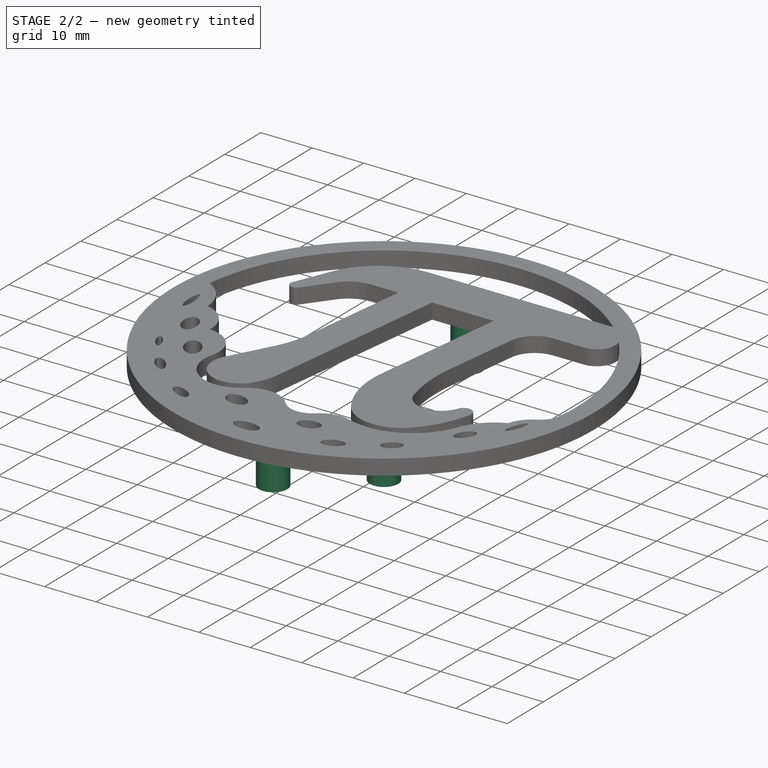
[diagram: stage 2 of 2 — iso view after this stage's code; geometry added in this stage tinted green]
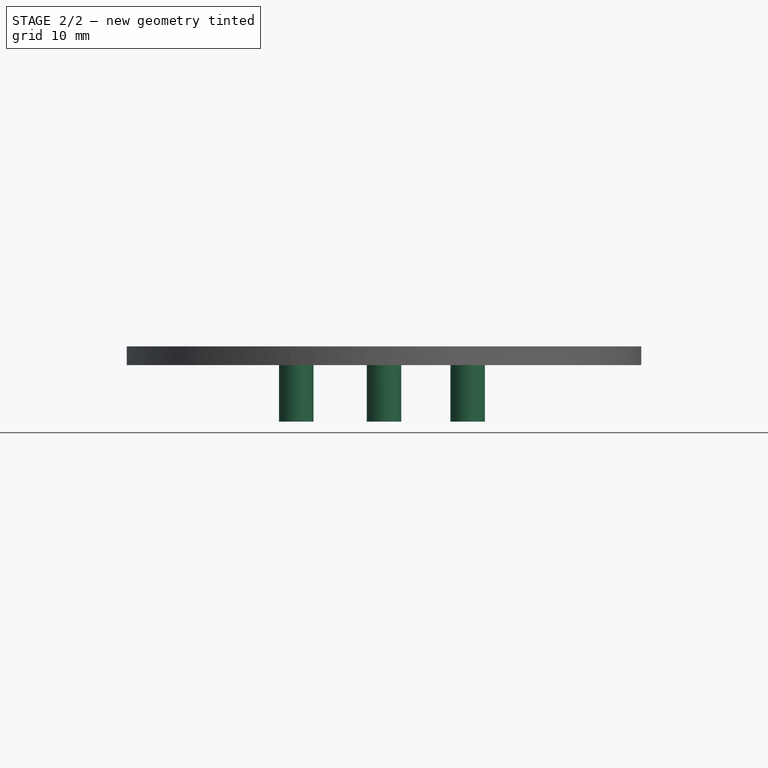
[diagram: stage 2 of 2 — front view after this stage's code; geometry added in this stage tinted green]
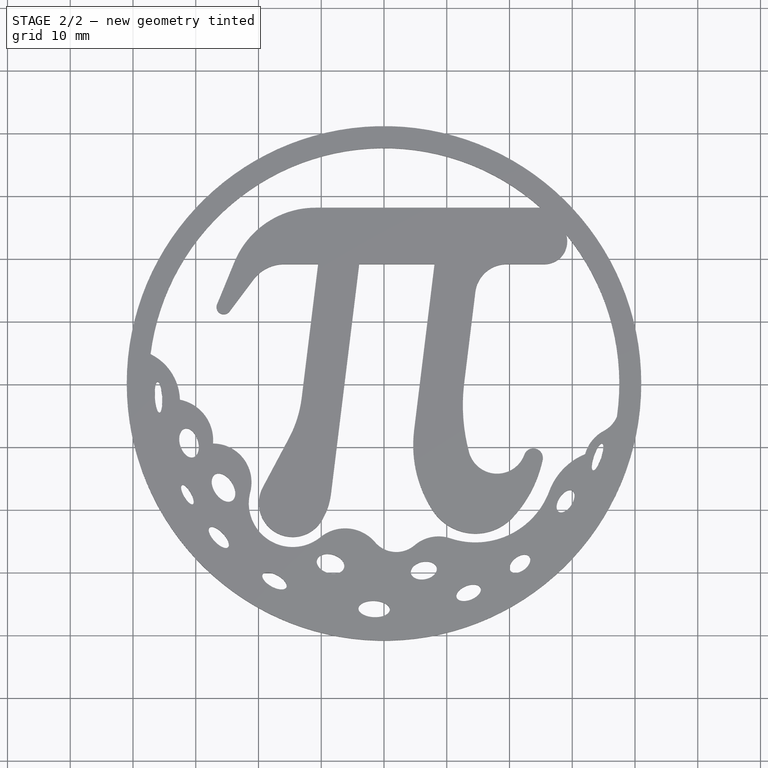
[diagram: stage 2 of 2 — top view after this stage's code; geometry added in this stage tinted green]
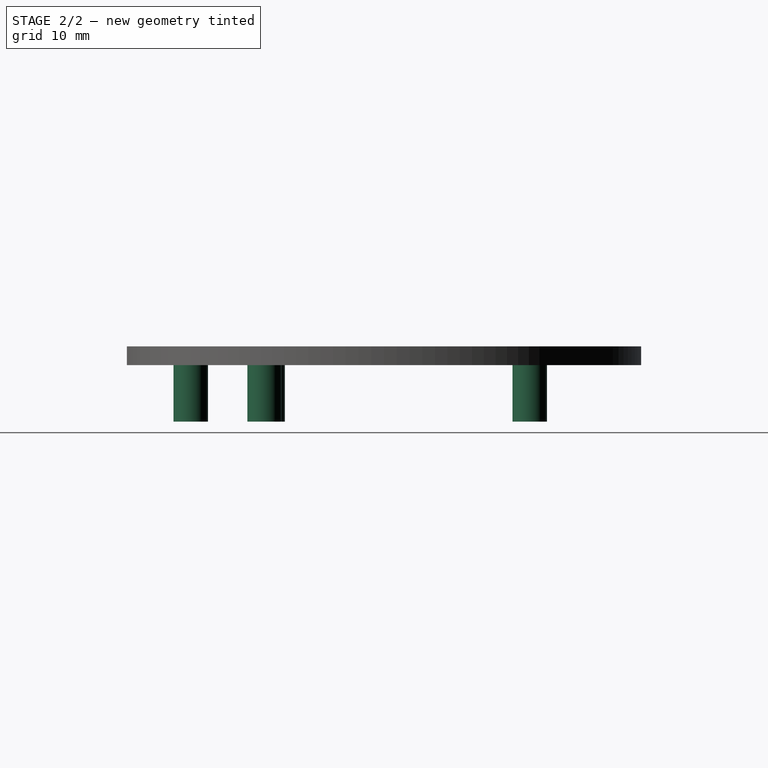
[diagram: stage 2 of 2 — right view after this stage's code; geometry added in this stage tinted green]
FEATURE [PartDesign::ShapeBinder] CopyScale
  TraceSupport = false
FEATURE [Sketcher::SketchObject] Sketch001
  ArcFitTolerance = 1e-06
  AttachmentSupport = -> [CopyScale]
  FullyConstrained = true
  MakeInternals = false
  MapMode = 5
  Placement = pos=(0,0,0) rot=(1,0,0;3.14159rad)
  sketch-geometry (10):
    g0: Circle CenterX=0 CenterY=-23.23 CenterZ=0 NormalX=0 NormalY=0 NormalZ=1 AngleXU=0 Radius=2.75
    g1: Circle CenterX=-13.9802 CenterY=18.5523 CenterZ=0 NormalX=0 NormalY=0 NormalZ=1 AngleXU=0 Radius=2.75
    g2: Circle CenterX=13.3242 CenterY=19.0289 CenterZ=0 NormalX=0 NormalY=0 NormalZ=1 AngleXU=0 Radius=2.75
    g3: LineSegment [constr] StartX=13.3242 StartY=19.0289 StartZ=0 EndX=0 EndY=0 EndZ=0
    g4: LineSegment [constr] StartX=-13.9802 StartY=18.5523 StartZ=0 EndX=1.8e-15 EndY=0 EndZ=0
    g5: Circle CenterX=-13.9802 CenterY=18.5523 CenterZ=0 NormalX=0 NormalY=0 NormalZ=1 AngleXU=0 Radius=1.25
    g6: Circle CenterX=13.3242 CenterY=19.0289 CenterZ=0 NormalX=0 NormalY=0 NormalZ=1 AngleXU=0 Radius=1.25
    g7: Circle CenterX=0 CenterY=-23.23 CenterZ=0 NormalX=0 NormalY=0 NormalZ=1 AngleXU=0 Radius=1.25
    g8: Circle CenterX=0 CenterY=30.8 CenterZ=0 NormalX=0 NormalY=0 NormalZ=1 AngleXU=0 Radius=2.75
    g9: Circle CenterX=0 CenterY=30.8 CenterZ=0 NormalX=0 NormalY=0 NormalZ=1 AngleXU=0 Radius=1.25
  constraints (24):
    c: PointOnObject(g0,g-2)
    c: Coincident(g3,g2)
    c: Coincident(g3,g-1)
    c: Coincident(g4,g1)
    c: Coincident(g4,g3)
    c: Distance(g4,g4) = 23.23
    c: DistanceY(g0,g-1) = 23.23
    c: Diameter(g0) = 5.5
    c: Diameter(g1) = 5.5
    c: Diameter(g2) = 5.5
    c: Angle(g3,g-2) = 0.610865
    c: Angle(g-2,g4) = 0.645772
    c: Distance(g3,g3) = 23.23
    c: Coincident(g5,g1)
    c: Diameter(g5) = 2.5
    c: Coincident(g6,g2)
    c: Coincident(g7,g0)
    c: Diameter(g7) = 2.5
    c: Diameter(g6) = 2.5
    c: PointOnObject(g8,g-2)
    c: Diameter(g8) = 5.5
    c: Coincident(g9,g8)
    c: Diameter(g9) = 2.5
    c: Distance(g8,g-1) = 30.8
FEATURE [PartDesign::Pad] Pad001
  BaseFeature = -> Pad
  Direction = (0,0,-1)
  Length = 9
  Length2 = 10
  Profile = -> Sketch001
  ReferenceAxis = -> Sketch001 [N_Axis]
  Refine = true
  Suppressed = false
  Type = 0
FEATURE [PartDesign::Body] Body  label="Stack_Module_Cover_LogoBall001"
  AllowCompound = false
  Group = -> [Sketch,Pad,CopyScale,Sketch001,Pad001]
  Origin = -> Origin001
  Tip = -> Pad001
FEATURE [Part::Scale] Scale
  Base = -> Body
  Uniform = false
  UniformScale = 1
  XScale = 0.99
  YScale = 0.99
  ZScale = 1
FEATURE [PartDesign::CoordinateSystem] LCS_1
  AttacherType = Attacher::AttachEngine3D
  AttachmentSupport = -> [Scale]
  MapMode = 11
  Placement = pos=(-7.1e-15,0,0) rot=(0,0,1;1.5708rad)
FEATURE [App::Part] Part  label="Stack_Module_Cover_LogoBall"
  Group = -> [Body,Scale,LCS_1]
  Origin = -> Origin
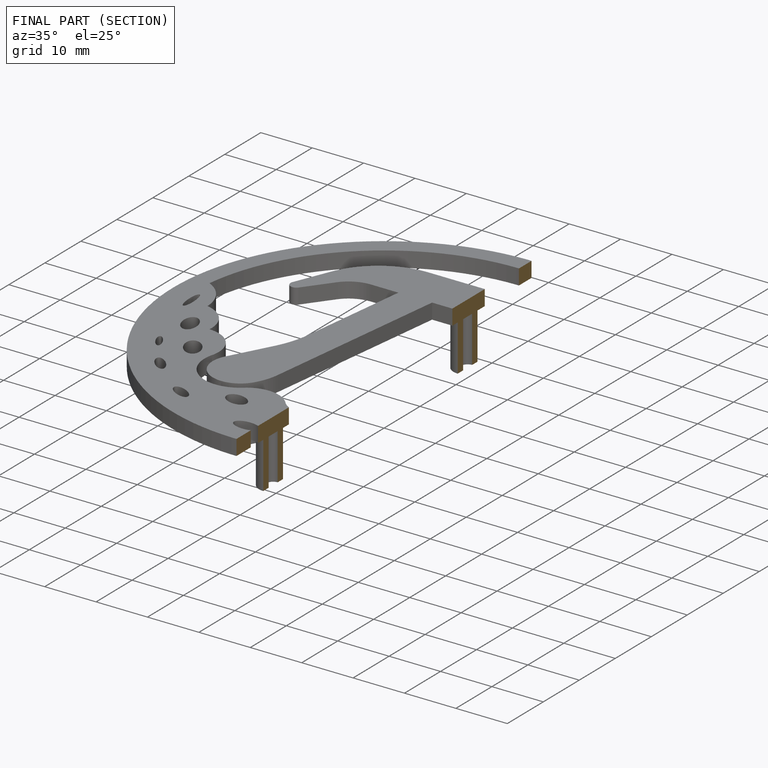
[diagram: finished part — half-section view (interior)]
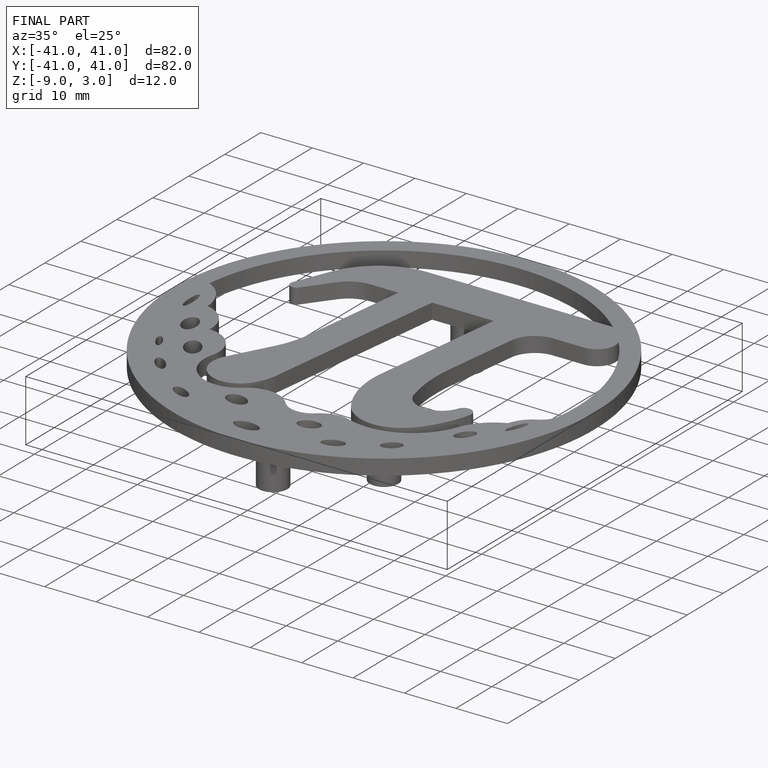
[diagram: finished part — iso view with bounding-box wireframe]
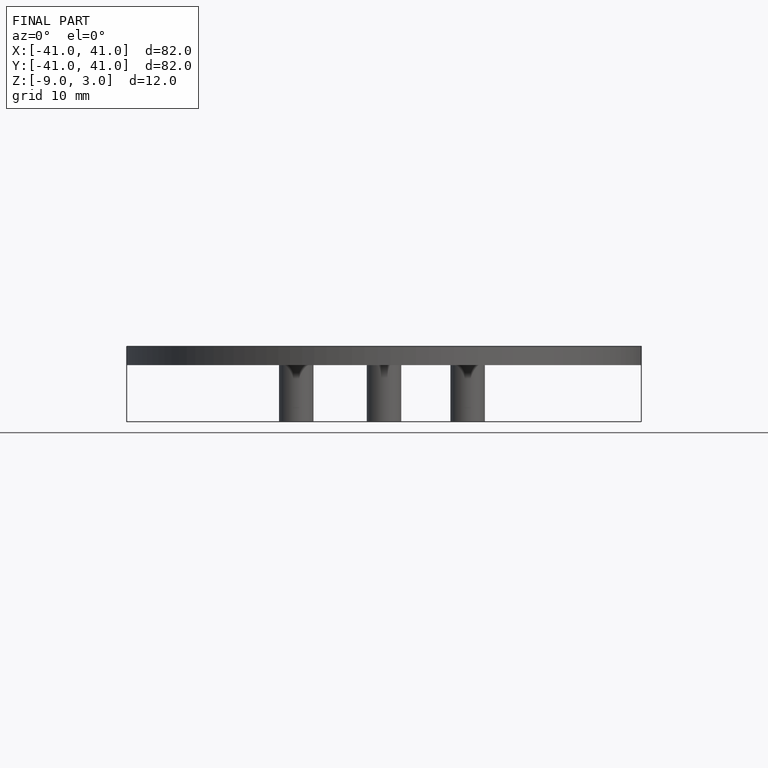
[diagram: finished part — front view with bounding-box wireframe]
